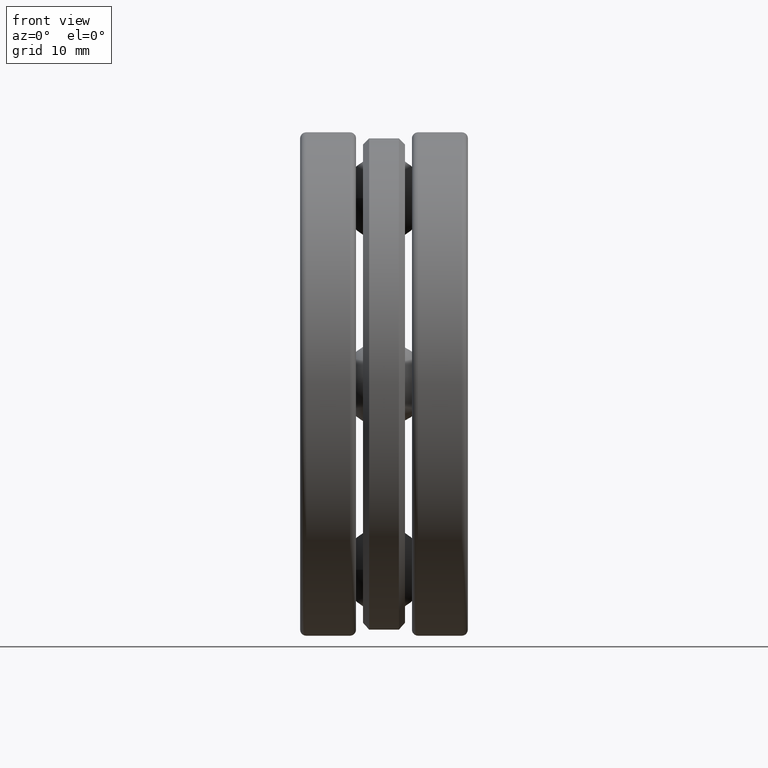
[diagram: clean part render]
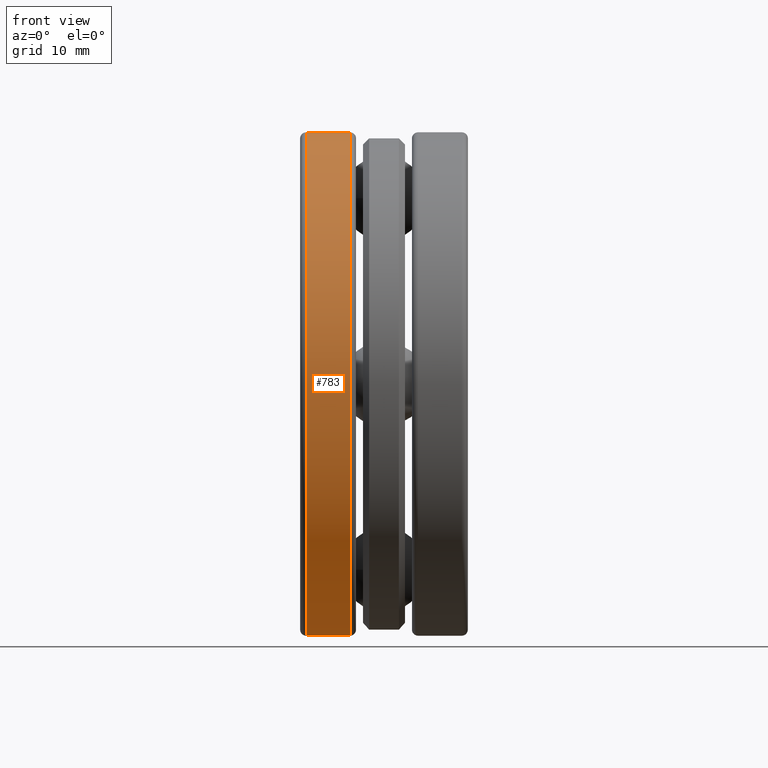
[diagram: same view with one face highlighted and labeled with its STEP entity id]
A machine part, front view. The second image highlights one B-rep face of the part: STEP entity #783.
In plain terms, the highlighted cylindrical surface (bore or boss wall) has radius 21.0058 mm, axis along (-1, -0, -0).
Its self-contained STEP definition (entity closure, byte-faithful):
#26 = CARTESIAN_POINT ( 'NONE',  ( -0.1118351699999999400, 0.0000000000000000000, 0.0000000000000000000 ) ) ;
#75 = CARTESIAN_POINT ( 'NONE',  ( 0.0000000000000000000, 0.0000000000000000000, 0.0000000000000000000 ) ) ;
#128 = AXIS2_PLACEMENT_3D ( 'NONE', #194, #638, #330 ) ;
#180 = EDGE_CURVE ( 'NONE', #370, #370, #784, .T. ) ;
#181 = EDGE_LOOP ( 'NONE', ( #738 ) ) ;
#194 = CARTESIAN_POINT ( 'NONE',  ( -0.2555000000000000600, 0.0000000000000000000, 0.0000000000000000000 ) ) ;
#243 = AXIS2_PLACEMENT_3D ( 'NONE', #75, #653, #383 ) ;
#310 = ORIENTED_EDGE ( 'NONE', *, *, #384, .F. ) ;
#314 = AXIS2_PLACEMENT_3D ( 'NONE', #26, #465, #598 ) ;
#330 = DIRECTION ( 'NONE',  ( 0.0000000000000000000, 0.0000000000000000000, 1.000000000000000000 ) ) ;
#370 = VERTEX_POINT ( 'NONE', #751 ) ;
#382 = FACE_OUTER_BOUND ( 'NONE', #433, .T. ) ;
#383 = DIRECTION ( 'NONE',  ( 0.0000000000000000000, 0.0000000000000000000, 1.000000000000000000 ) ) ;
#384 = EDGE_CURVE ( 'NONE', #721, #721, #608, .T. ) ;
#433 = EDGE_LOOP ( 'NONE', ( #310 ) ) ;
#465 = DIRECTION ( 'NONE',  ( -1.000000000000000000, -0.0000000000000000000, -0.0000000000000000000 ) ) ;
#557 = FACE_OUTER_BOUND ( 'NONE', #181, .T. ) ;
#598 = DIRECTION ( 'NONE',  ( 0.0000000000000000000, 0.0000000000000000000, 1.000000000000000000 ) ) ;
#608 = CIRCLE ( 'NONE', #128, 0.8269999999999999600 ) ;
#638 = DIRECTION ( 'NONE',  ( -1.000000000000000000, -0.0000000000000000000, -0.0000000000000000000 ) ) ;
#653 = DIRECTION ( 'NONE',  ( -1.000000000000000000, -0.0000000000000000000, -0.0000000000000000000 ) ) ;
#721 = VERTEX_POINT ( 'NONE', #777 ) ;
#738 = ORIENTED_EDGE ( 'NONE', *, *, #180, .T. ) ;
#751 = CARTESIAN_POINT ( 'NONE',  ( -0.1118351699999999400, 0.0000000000000000000, 0.8269999999999999600 ) ) ;
#770 = CYLINDRICAL_SURFACE ( 'NONE', #243, 0.8269999999999999600 ) ;
#777 = CARTESIAN_POINT ( 'NONE',  ( -0.2555000000000000600, 0.0000000000000000000, 0.8269999999999999600 ) ) ;
#783 = ADVANCED_FACE ( 'NONE', ( #382, #557 ), #770, .T. ) ;
#784 = CIRCLE ( 'NONE', #314, 0.8269999999999999600 ) ;